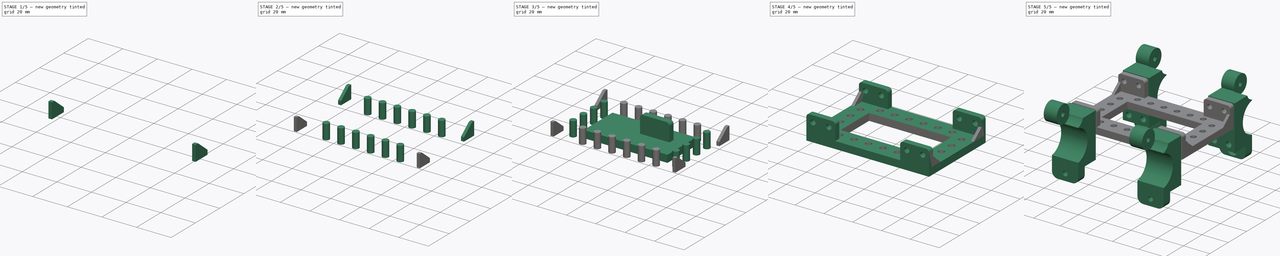
[diagram: build sequence overview — one tinted view per stage of 5, left to right]
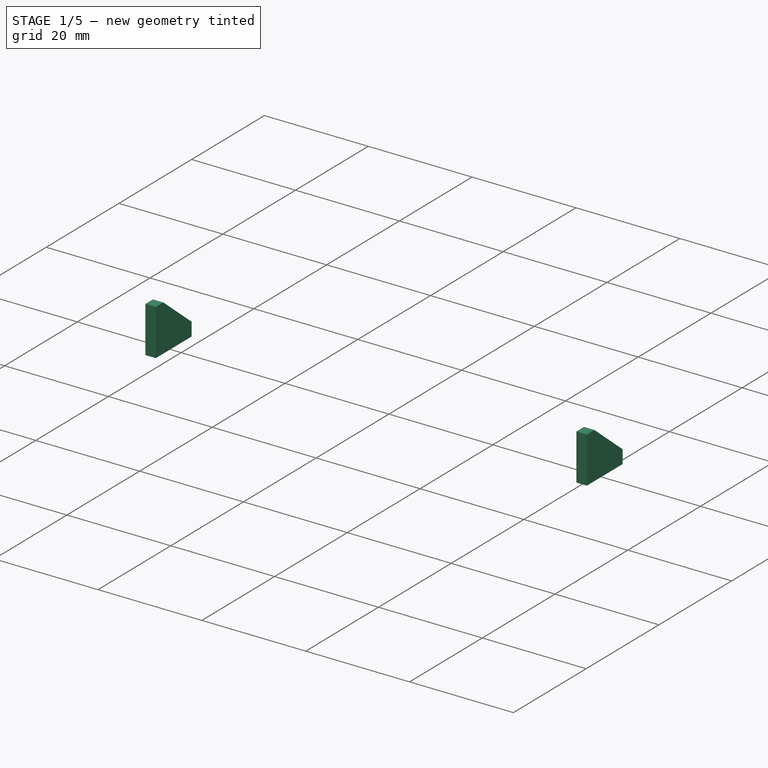
[diagram: stage 1 of 5 — iso view after this stage's code; geometry added in this stage tinted green]
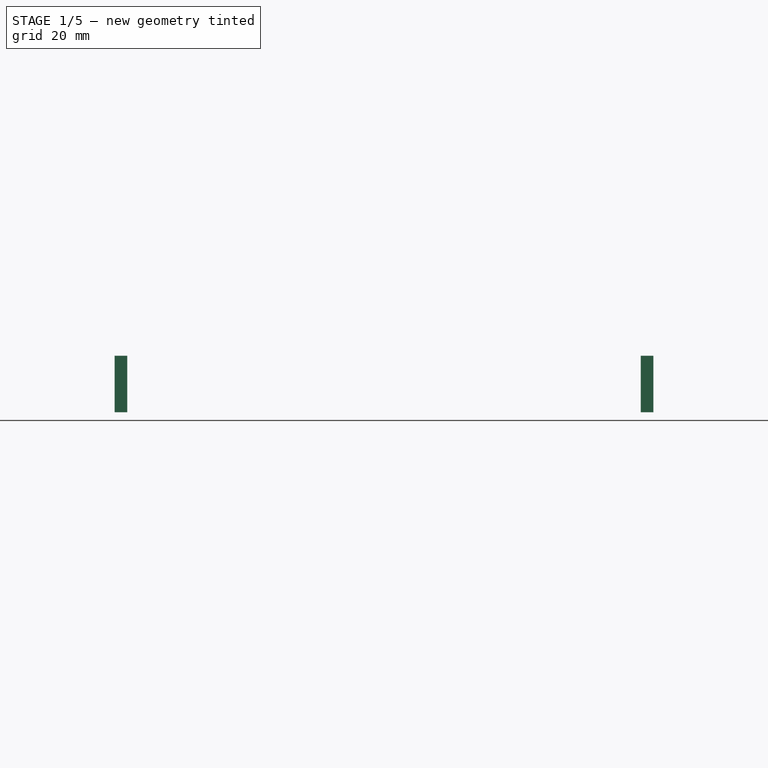
[diagram: stage 1 of 5 — front view after this stage's code; geometry added in this stage tinted green]
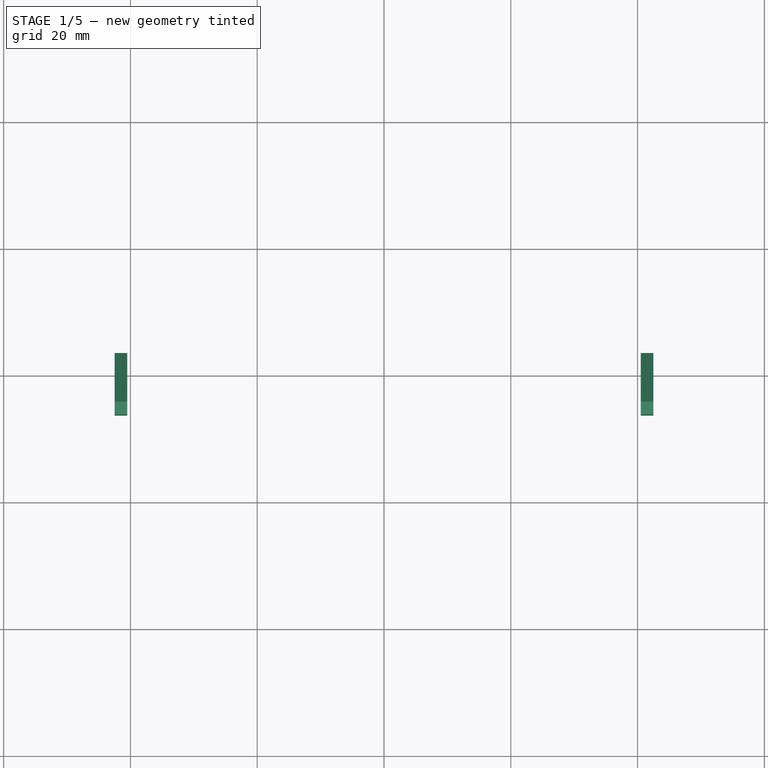
[diagram: stage 1 of 5 — top view after this stage's code; geometry added in this stage tinted green]
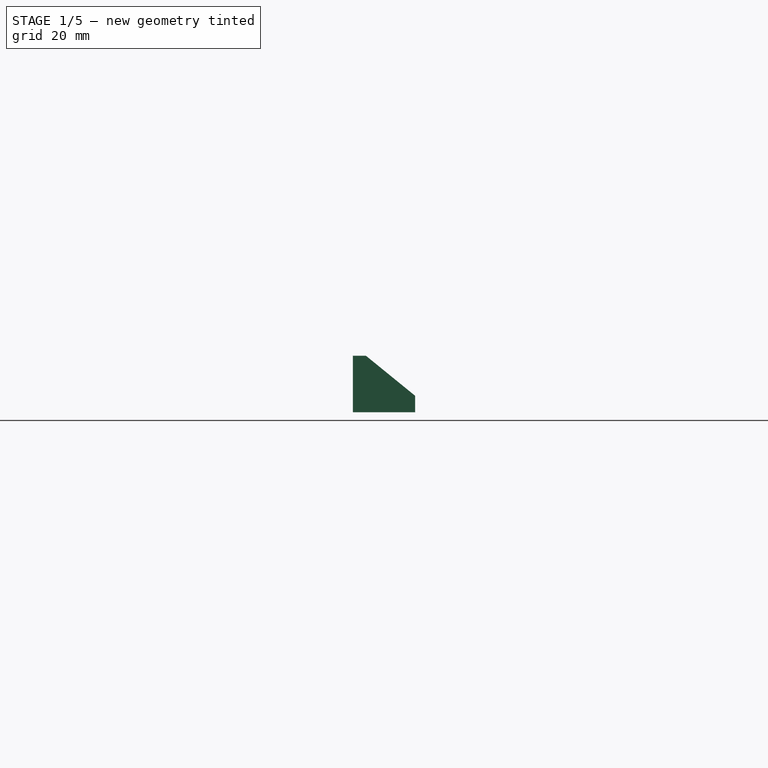
[diagram: stage 1 of 5 — right view after this stage's code; geometry added in this stage tinted green]
FCSTD DOCUMENT  (FreeCAD 0.19R)
Label: carriage
License: All rights reserved
LicenseURL: http://en.wikipedia.org/wiki/All_rights_reserved
objects: Part::FeaturePython×6, Part::Box×3, Part::Feature×2, Part::Mirroring×2, Part::Compound×2, Part::Cylinder×2, Part::Cut×2, Part::MultiFuse×2, PartDesign::Body×2, Spreadsheet::Sheet×1, Part::Fillet×1, Sketcher::SketchObject×1, PartDesign::Pad×1, App::Part×1, PartDesign::FeatureBase×1
note: 22 computed .brp shape members not serialized (recipe doc carries the construction recipe); baked Part::Feature solids carry a one-line shape summary decoded from their .brp

FEATURE [Part::Box] Box  label="outer cube"
  AttacherType = Attacher::AttachEngine3D
  Height = 5
  Length = 85
  Placement = pos=(-42.5,-28,0) rot=(0,0,1;0rad)
  Width = 56
  expr: .Placement.Base.y = -Width / 2
  expr: .Placement.Base.x = -Length / 2
  expr: Height = <<p>>.carriage_h
  expr: Width = <<p>>.carriage_w
  expr: Length = <<p>>.carriage_l
FEATURE [Part::Box] Box002  label="connector cube"
  AttacherType = Attacher::AttachEngine3D
  Height = 17
  Length = 20
  Width = 4
  expr: Length = <<p>>.attachment_size
  expr: Width = <<p>>.connection_wall
FEATURE [Sketcher::SketchObject] Sketch
  FullyConstrained = false
  MapMode = 5
  Placement = pos=(0,0,0) rot=(0.57735,0.57735,0.57735;2.0944rad)
  Support = -> [YZ_Plane001]
  sketch-geometry (5):
    g0: LineSegment StartX=-26.2618 StartY=11.2812 StartZ=0 EndX=-24.1909 EndY=11.2812 EndZ=0
    g1: LineSegment StartX=-24.1909 StartY=11.2812 StartZ=0 EndX=-16.4249 EndY=4.96486 EndZ=0
    g2: LineSegment StartX=-16.4249 StartY=4.96486 StartZ=0 EndX=-16.4249 EndY=2.3762 EndZ=0
    g3: LineSegment StartX=-16.4249 StartY=2.3762 StartZ=0 EndX=-26.2618 EndY=2.3762 EndZ=0
    g4: LineSegment StartX=-26.2618 StartY=2.3762 StartZ=0 EndX=-26.2618 EndY=11.2812 EndZ=0
  constraints (8):
    c: Coincident(g1,g0)
    c: Vertical(g2)
    c: Coincident(g3,g2)
    c: Coincident(g4,g3)
    c: Coincident(g4,g0)
    c: Horizontal(g0)
    c: Horizontal(g3)
    c: Vertical(g4)
FEATURE [PartDesign::Pad] Pad
  Direction = (1,1,1)
  Length = 2
  Length2 = 100
  Placement = pos=(0,0,0) rot=(0.57735,0.57735,0.57735;2.0944rad)
  Profile = -> Sketch
  Type = 0
FEATURE [PartDesign::Body] Body  label="triangle body"
  Group = -> [Sketch,Pad]
  Origin = -> Origin001
  Tip = -> Pad
FEATURE [Part::FeaturePython] Array005  label="triangle body array"  # Draft array (typed FeaturePython)
  Angle = 360
  ArrayType = 0
  Axis = (0,0,1)
  Base = -> Body
  Center = (0,0,0)
  Count = 2
  ExpandArray = false
  Fuse = false
  IntervalAxis = (0,0,0)
  IntervalX = (83,0,0)
  IntervalY = (0,52,0)
  IntervalZ = (0,0,100)
  NumberCircles = 3
  NumberPolar = 5
  NumberX = 2
  NumberY = 1
  NumberZ = 1
  Placement = pos=(-42.5,0,0) rot=(0,0,1;0rad)
  PlacementList = 2 placements: [(0,0,0),(83,0,0)]
  RadialDistance = 50
  ScaleList = (2) [(1,1,1),(1,1,1)]
  Symmetry = 1
  TangentialDistance = 25
  expr: .IntervalX.x = <<outer cube>>.Length - <<Pad>>.Length
  expr: .IntervalY.y = <<outer cube>>.Width - <<connector cube>>.Width
  expr: .Placement.Base.x = -<<outer cube>>.Length / 2
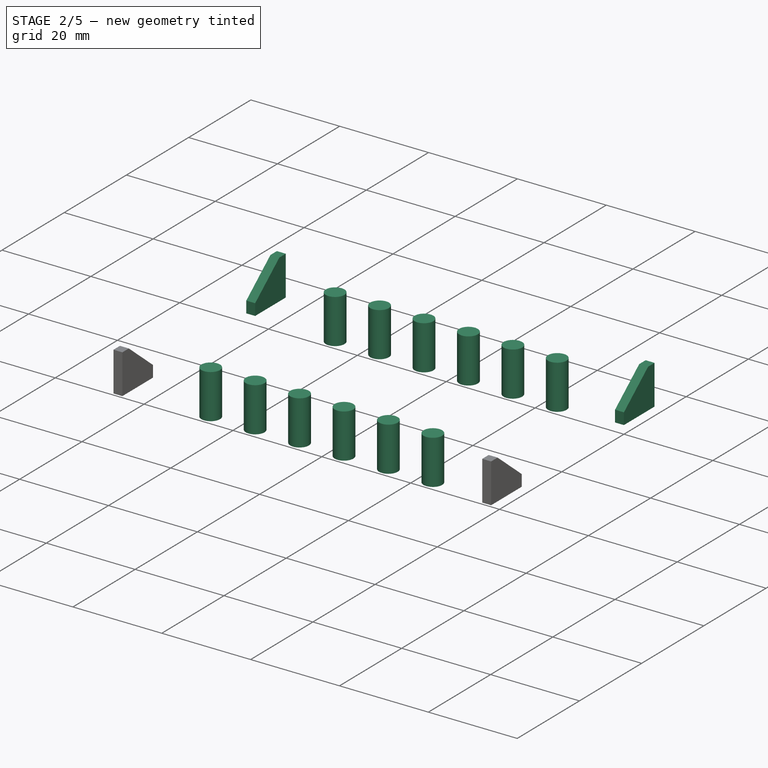
[diagram: stage 2 of 5 — iso view after this stage's code; geometry added in this stage tinted green]
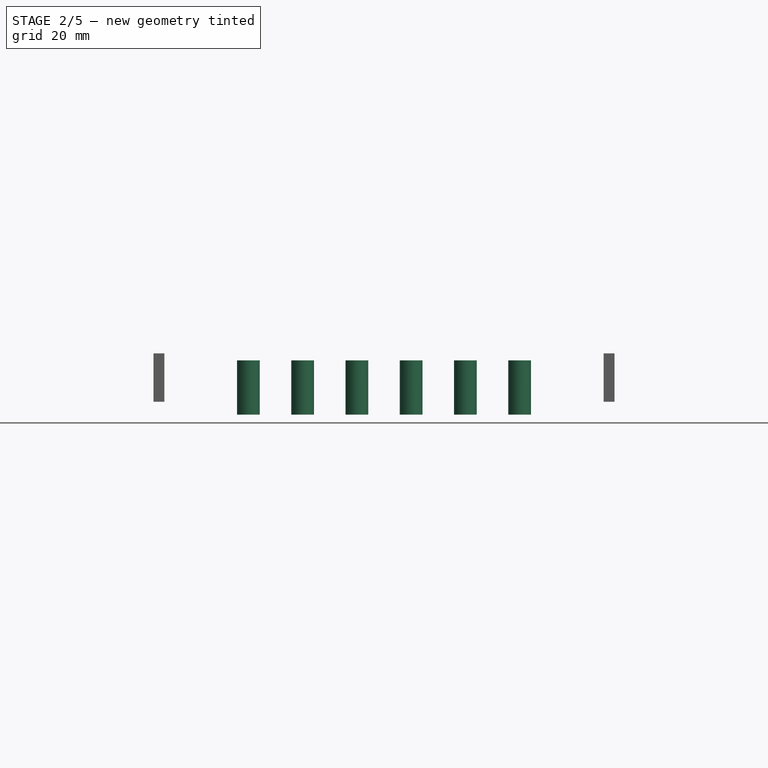
[diagram: stage 2 of 5 — front view after this stage's code; geometry added in this stage tinted green]
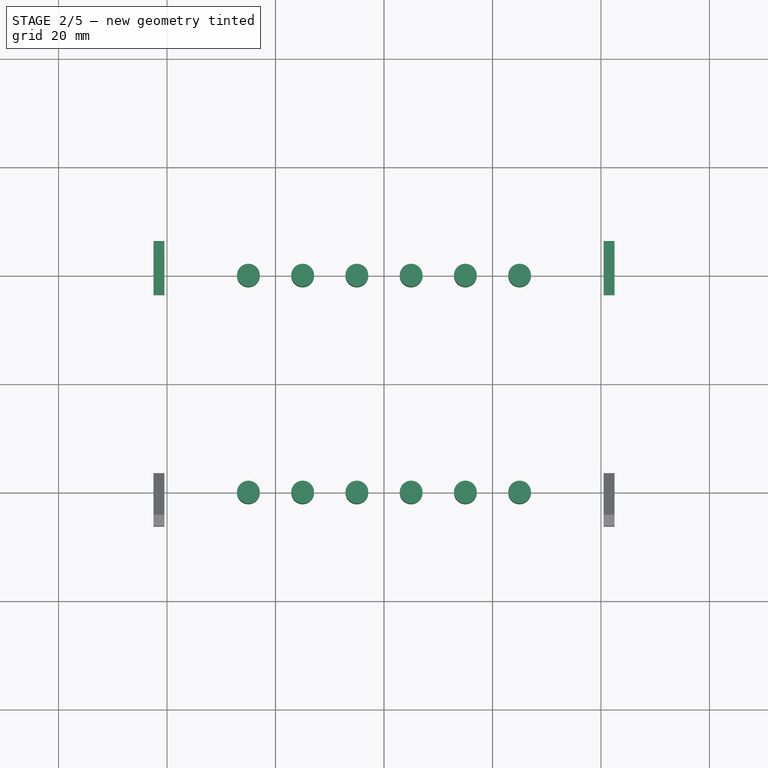
[diagram: stage 2 of 5 — top view after this stage's code; geometry added in this stage tinted green]
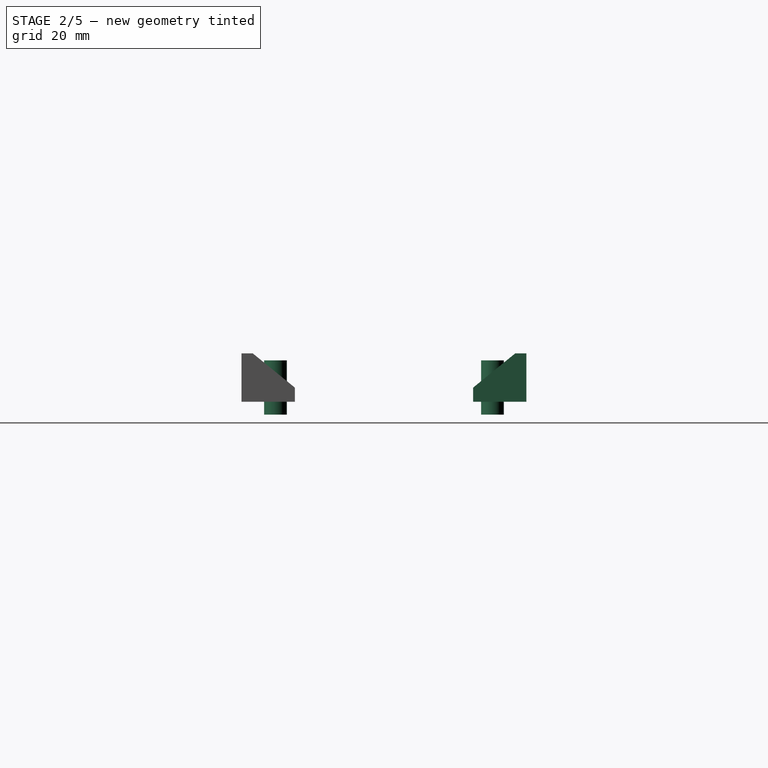
[diagram: stage 2 of 5 — right view after this stage's code; geometry added in this stage tinted green]
FEATURE [Part::Feature] Part002001  label="belt attach001"
  Placement = pos=(34,1e-15,5) rot=(-1,0,0;1.5708rad)
  shape: bbox 24 x 24 x 9 mm, 115 faces (baked)
FEATURE [Part::Cylinder] Cylinder  label="insert hole"
  Angle = 360
  AttacherType = Attacher::AttachEngine3D
  Height = 10
  Radius = 2.1
  expr: Radius = <<p>>.insert_r
FEATURE [Part::FeaturePython] Array004  label="insert hole array001"  # Draft array (typed FeaturePython)
  Angle = 360
  ArrayType = 0
  Axis = (0,0,1)
  Base = -> Cylinder
  Center = (0,0,0)
  Count = 12
  ExpandArray = false
  Fuse = false
  IntervalAxis = (0,0,0)
  IntervalX = (10,0,0)
  IntervalY = (0,40,0)
  IntervalZ = (0,0,100)
  NumberCircles = 3
  NumberPolar = 5
  NumberX = 6
  NumberY = 2
  NumberZ = 1
  Placement = pos=(-25,-20,0) rot=(0,0,1;0rad)
  PlacementList = 12 placements: [(0,0,0),(0,40,0),(10,0,0),(10,40,0),(20,0,0),(20,40,0),(30,0,0),(30,40,0),(40,0,0),(40,40,0),(50,0,0),(50,40,0)]
  RadialDistance = 50
  ScaleList = (12) [(1,1,1),(1,1,1),(1,1,1),(1,1,1),(1,1,1),(1,1,1),(1,1,1),(1,1,1),(1,1,1),(1,1,1),(1,1,1),(1,1,1)]
  Symmetry = 1
  TangentialDistance = 25
  expr: .Placement.Base.x = -(.IntervalX.x * (NumberX - 1)) / 2
  expr: .Placement.Base.y = -(.IntervalY.y * (NumberY - 1)) / 2
FEATURE [Part::Mirroring] Part__Mirroring001  label="triangle body array (Mirror #2)"
  Base = (0,0,0)
  Normal = (0,1,0)
  Source = -> Array005
FEATURE [Part::Compound] Compound001  label="triangle compound"
  Links = -> [Array005,Part__Mirroring001]
FEATURE [App::Part] Part  label="triangle part"
  Group = -> [Compound001]
  Origin = -> Origin
FEATURE [PartDesign::FeatureBase] Clone
  BaseFeature = -> Compound001
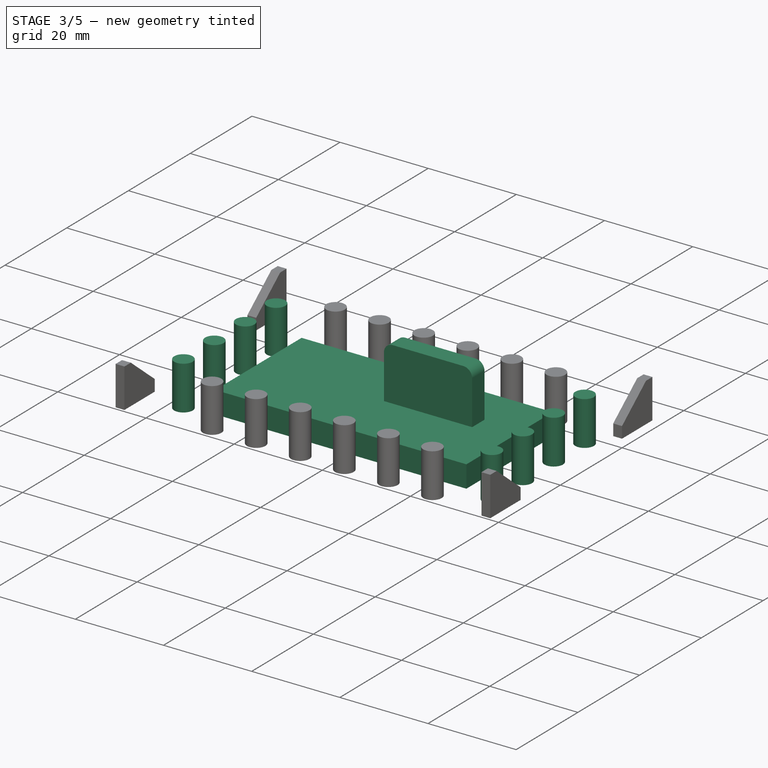
[diagram: stage 3 of 5 — iso view after this stage's code; geometry added in this stage tinted green]
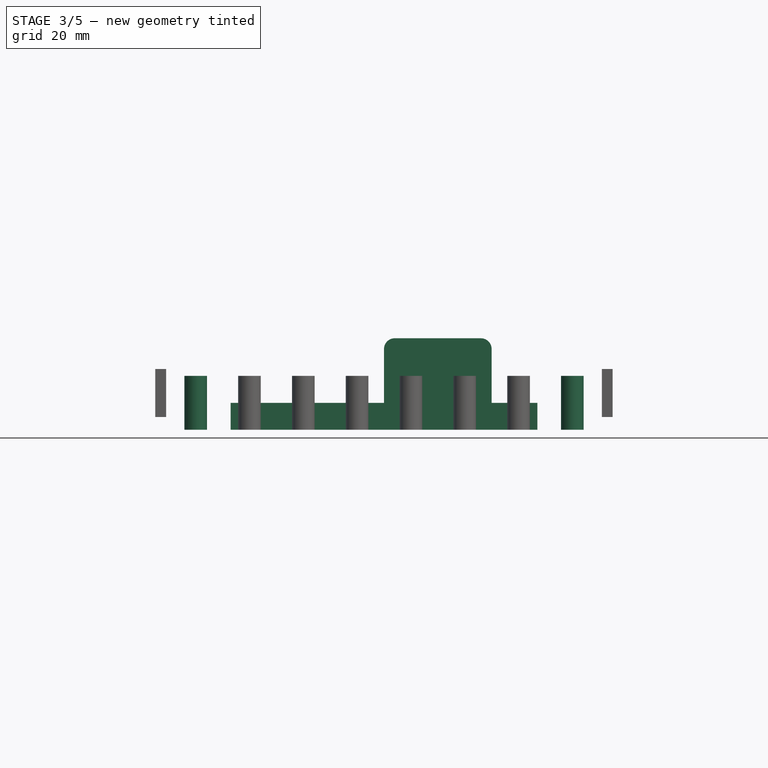
[diagram: stage 3 of 5 — front view after this stage's code; geometry added in this stage tinted green]
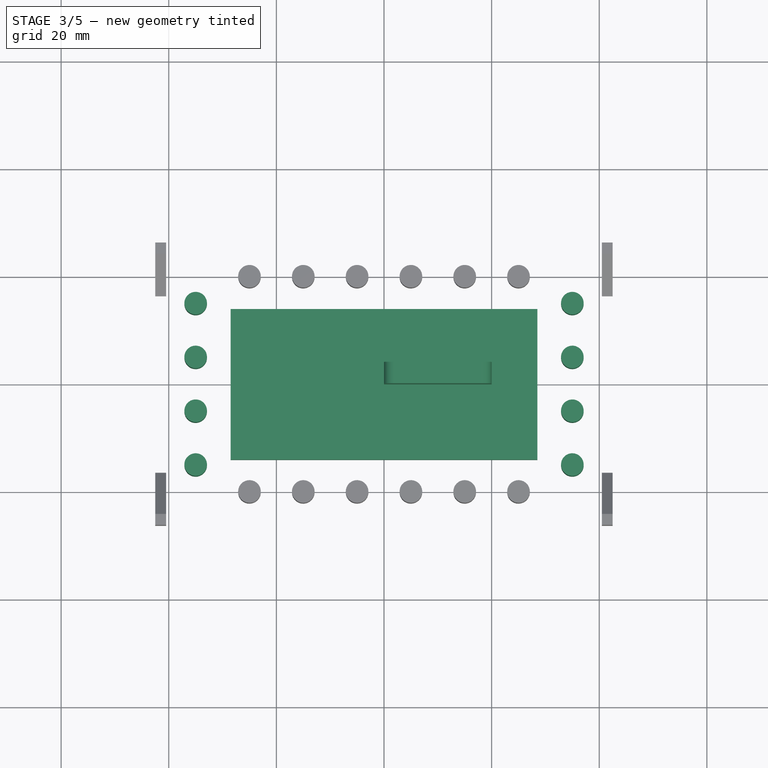
[diagram: stage 3 of 5 — top view after this stage's code; geometry added in this stage tinted green]
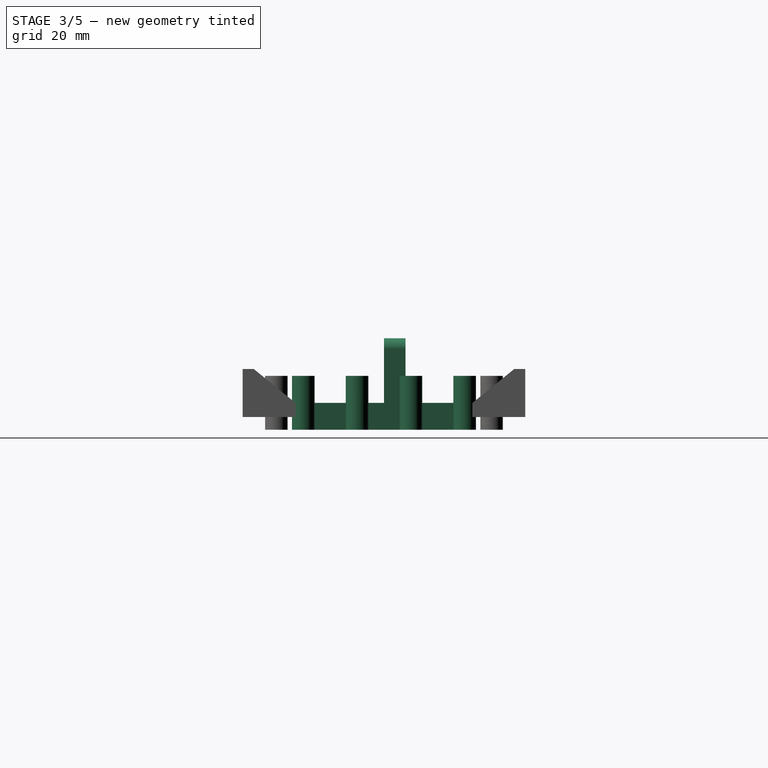
[diagram: stage 3 of 5 — right view after this stage's code; geometry added in this stage tinted green]
FEATURE [Spreadsheet::Sheet] Spreadsheet  label="p"
  cells = A1=carriage_l; B1(carriage_l)==85mm; A2=carriage_w; B2(carriage_w)==56mm; A3=carriage_h; B3(carriage_h)==5mm; A4=carriage_pad; B4(carriage_pad)==14mm; A5=attachment_size; B5(attachment_size)==20mm; A6=connection_wall; B6(connection_wall)==4mm; A7=bolt_hole_r; B7(bolt_hole_r)==1.8mm; A8=insert_r; B8(insert_r)==2.1mm
FEATURE [Part::Box] Box001  label="inner cube"
  AttacherType = Attacher::AttachEngine3D
  Height = 5
  Length = 57
  Placement = pos=(-28.5,-14,0) rot=(0,0,1;0rad)
  Width = 28
  expr: Length = <<p>>.carriage_l - 2 * <<p>>.carriage_pad
  expr: Width = <<p>>.carriage_w - 2 * <<p>>.carriage_pad
  expr: Height = <<p>>.carriage_h
  expr: .Placement.Base.x = -Length / 2
  expr: .Placement.Base.y = -Width / 2
FEATURE [Part::Fillet] Fillet  label="connector cube fillet"
  Base = -> Box002
  Edges = 2 edges r=2: [Edge2,Edge6]
FEATURE [Part::FeaturePython] Array003  label="insert hole array"  # Draft array (typed FeaturePython)
  Angle = 360
  ArrayType = 0
  Axis = (0,0,1)
  Base = -> Cylinder
  Center = (0,0,0)
  Count = 8
  ExpandArray = false
  Fuse = false
  IntervalAxis = (0,0,0)
  IntervalX = (70,0,0)
  IntervalY = (0,10,0)
  IntervalZ = (0,0,100)
  NumberCircles = 3
  NumberPolar = 5
  NumberX = 2
  NumberY = 4
  NumberZ = 1
  Placement = pos=(-35,-15,0) rot=(0,0,1;0rad)
  PlacementList = 8 placements: [(0,0,0),(0,10,0),(0,20,0),(0,30,0),(70,0,0),(70,10,0),(70,20,0),(70,30,0)]
  RadialDistance = 50
  ScaleList = (8) [(1,1,1),(1,1,1),(1,1,1),(1,1,1),(1,1,1),(1,1,1),(1,1,1),(1,1,1)]
  Symmetry = 1
  TangentialDistance = 25
  expr: .Placement.Base.y = -(.IntervalY.y * (NumberY - 1)) / 2
  expr: .Placement.Base.x = -(.IntervalX.x * (NumberX - 1)) / 2
FEATURE [Part::MultiFuse] Fusion001  label="carriage extract fusion"
  Shapes = -> [Box001,Array003,Array004]
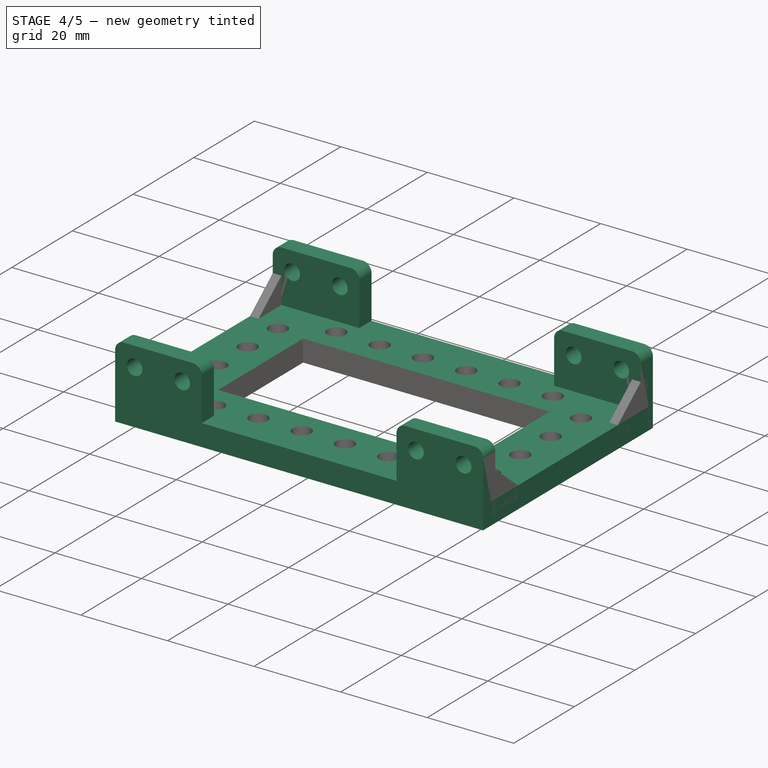
[diagram: stage 4 of 5 — iso view after this stage's code; geometry added in this stage tinted green]
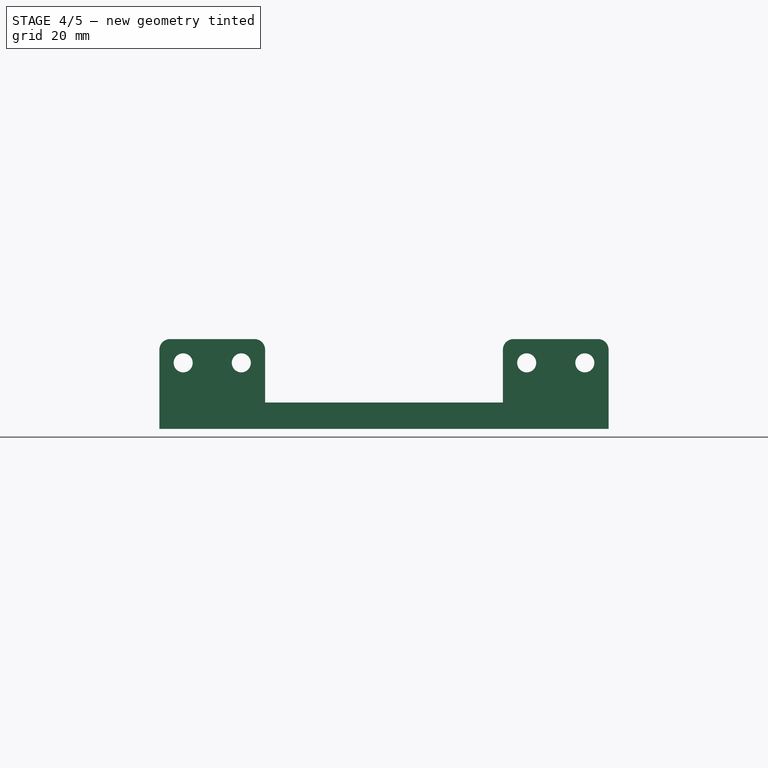
[diagram: stage 4 of 5 — front view after this stage's code; geometry added in this stage tinted green]
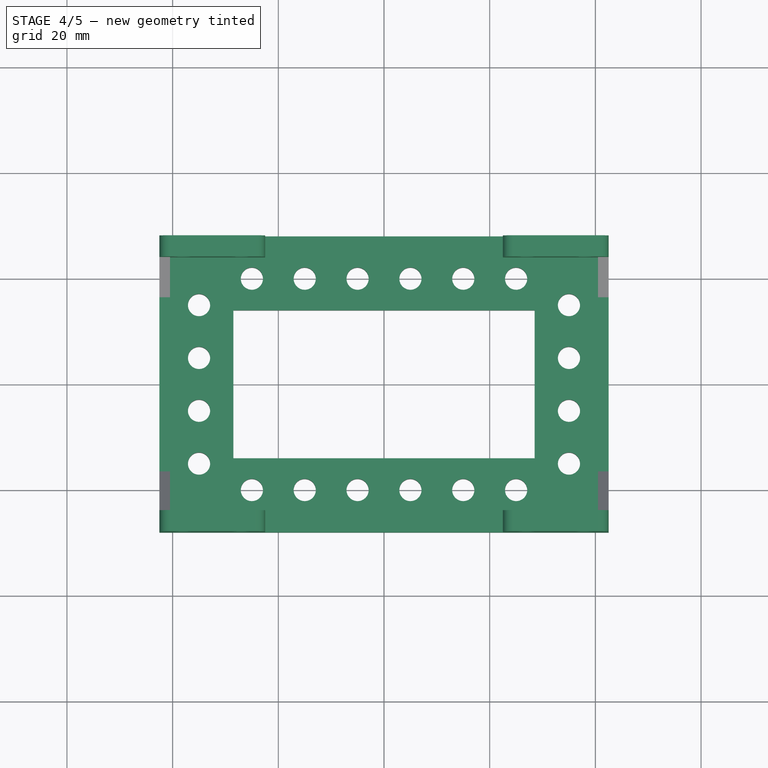
[diagram: stage 4 of 5 — top view after this stage's code; geometry added in this stage tinted green]
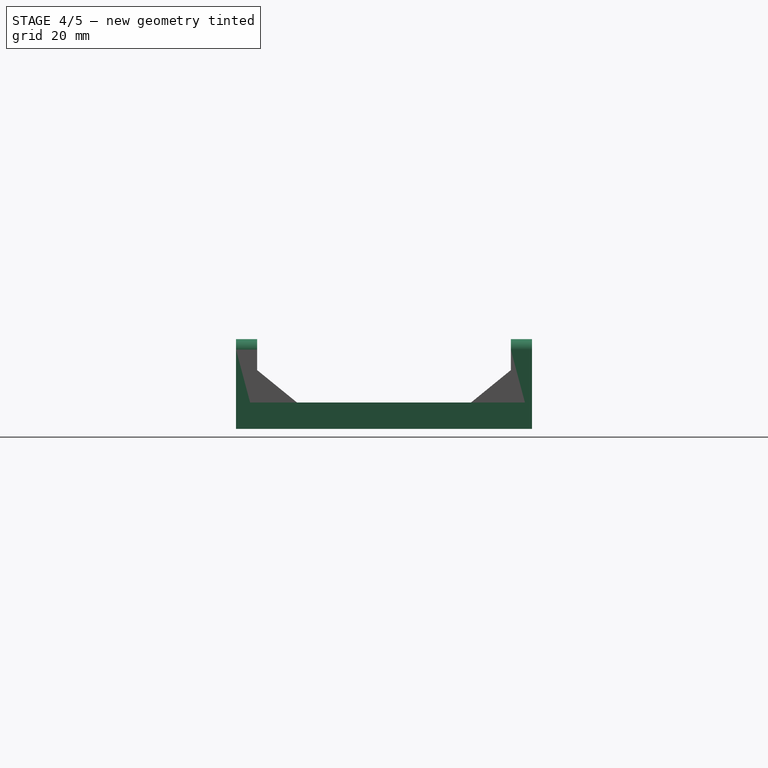
[diagram: stage 4 of 5 — right view after this stage's code; geometry added in this stage tinted green]
FEATURE [Part::Cylinder] Cylinder038  label="bolt hole"
  Angle = 360
  AttacherType = Attacher::AttachEngine3D
  Height = 100
  Placement = pos=(0,0,-50) rot=(0,0,1;0rad)
  Radius = 1.8
  expr: .Placement.Base.z = -Height / 2
  expr: Radius = <<p>>.bolt_hole_r
FEATURE [Part::FeaturePython] Array002  label="connector bolt hole array"  # Draft array (typed FeaturePython)
  Angle = 360
  ArrayType = 0
  Axis = (0,0,1)
  Base = -> Cylinder038
  Center = (0,0,0)
  Count = 4
  ExpandArray = false
  Fuse = false
  IntervalAxis = (0,0,0)
  IntervalX = (11,0,0)
  IntervalY = (0,25,0)
  IntervalZ = (0,0,100)
  NumberCircles = 3
  NumberPolar = 5
  NumberX = 2
  NumberY = 2
  NumberZ = 1
  Placement = pos=(4.5,0,-12.5) rot=(1,0,0;1.5708rad)
  PlacementList = 4 placements: [(0,0,-50),(0,25,-50),(11,0,-50),(11,25,-50)]
  RadialDistance = 50
  ScaleList = (4) [(1,1,1),(1,1,1),(1,1,1),(1,1,1)]
  Symmetry = 1
  TangentialDistance = 25
  expr: .Placement.Base.x = (<<p>>.attachment_size - .IntervalX.x) / 2
  expr: .Placement.Base.z = -.IntervalY.y / 2
FEATURE [Part::Cut] Cut023015009002  label="connector cube cut"
  Base = -> Fillet
  Tool = -> Array002
FEATURE [Part::FeaturePython] Array001  label="connector cube array"  # Draft array (typed FeaturePython)
  Angle = 360
  ArrayType = 0
  Axis = (0,0,1)
  Base = -> Cut023015009002
  Center = (0,0,0)
  Count = 4
  ExpandArray = false
  Fuse = false
  IntervalAxis = (0,0,0)
  IntervalX = (65,0,0)
  IntervalY = (0,52,0)
  IntervalZ = (0,0,100)
  NumberCircles = 3
  NumberPolar = 5
  NumberX = 2
  NumberY = 2
  NumberZ = 1
  Placement = pos=(-42.5,-28,0) rot=(0,0,1;0rad)
  PlacementList = 4 placements: [(0,0,0),(0,52,0),(65,0,0),(65,52,0)]
  RadialDistance = 50
  ScaleList = (4) [(1,1,1),(1,1,1),(1,1,1),(1,1,1)]
  Symmetry = 1
  TangentialDistance = 25
  expr: .Placement.Base.y = -<<outer cube>>.Width / 2
  expr: .Placement.Base.x = -<<outer cube>>.Length / 2
  expr: .IntervalY.y = <<outer cube>>.Width - <<connector cube>>.Width
  expr: .IntervalX.x = <<outer cube>>.Length - <<connector cube>>.Length
FEATURE [Part::Cut] Cut  label="carriage cube cut"
  Base = -> Box
  Tool = -> Fusion001
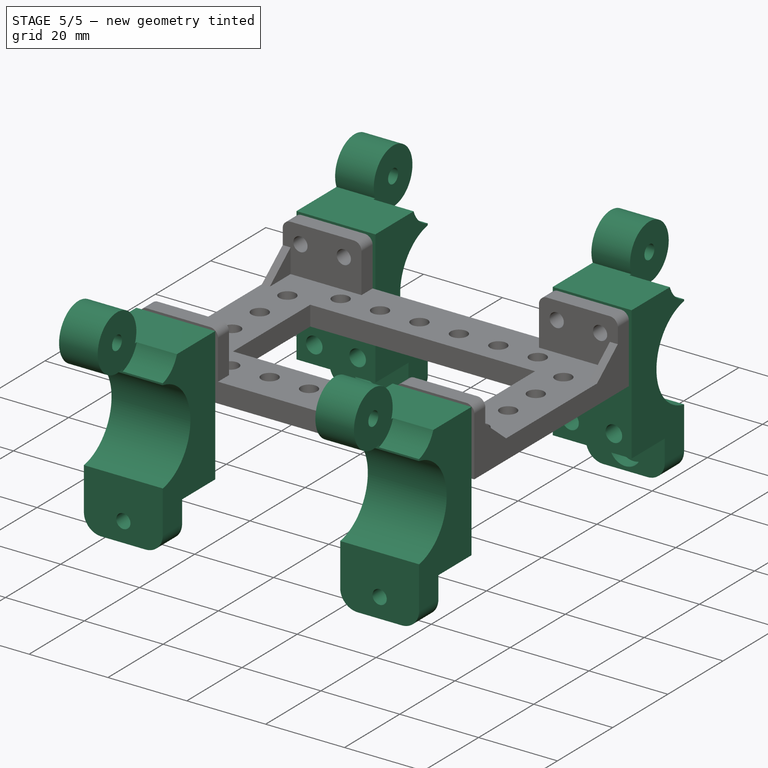
[diagram: stage 5 of 5 — iso view after this stage's code; geometry added in this stage tinted green]
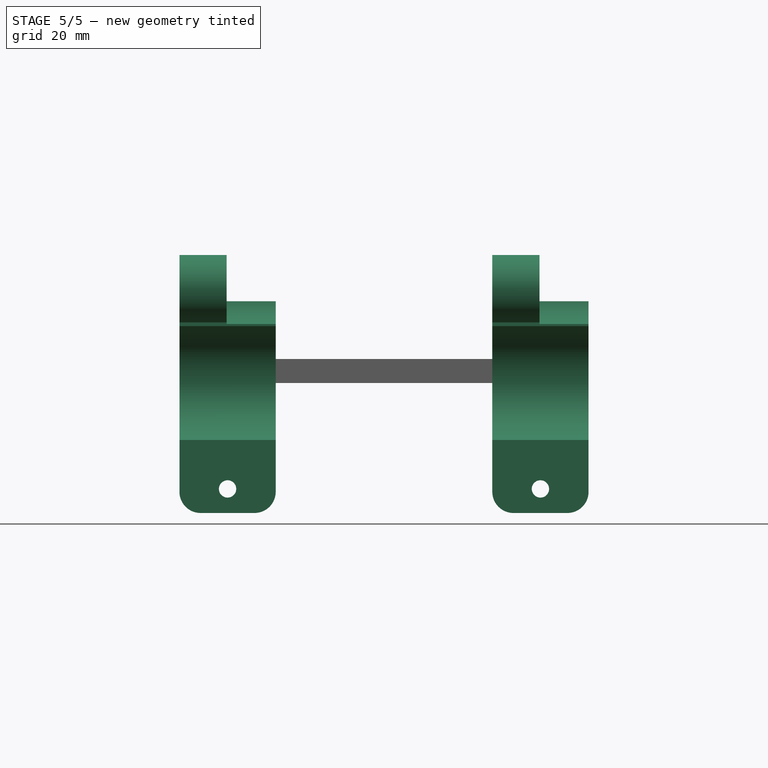
[diagram: stage 5 of 5 — front view after this stage's code; geometry added in this stage tinted green]
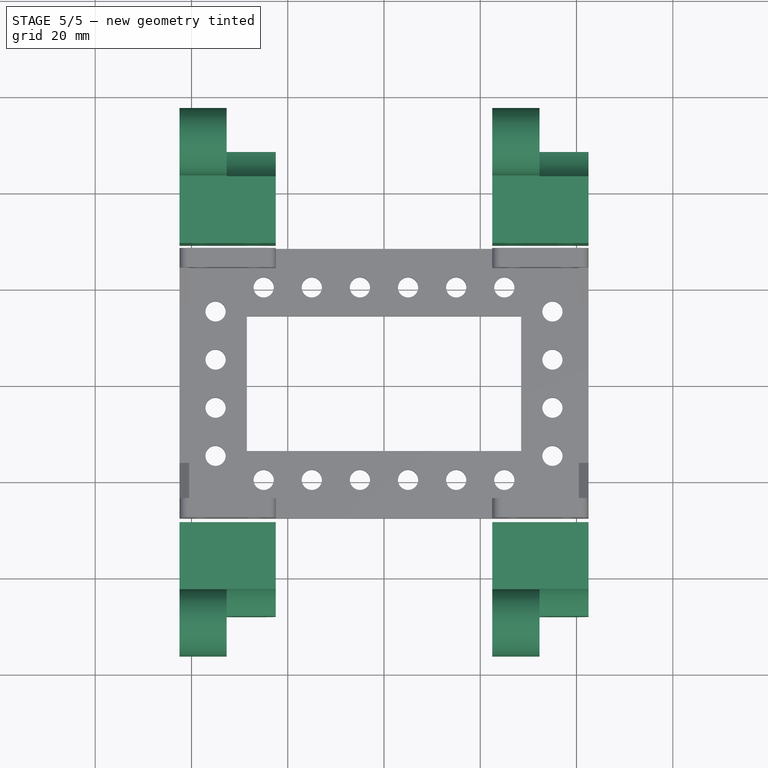
[diagram: stage 5 of 5 — top view after this stage's code; geometry added in this stage tinted green]
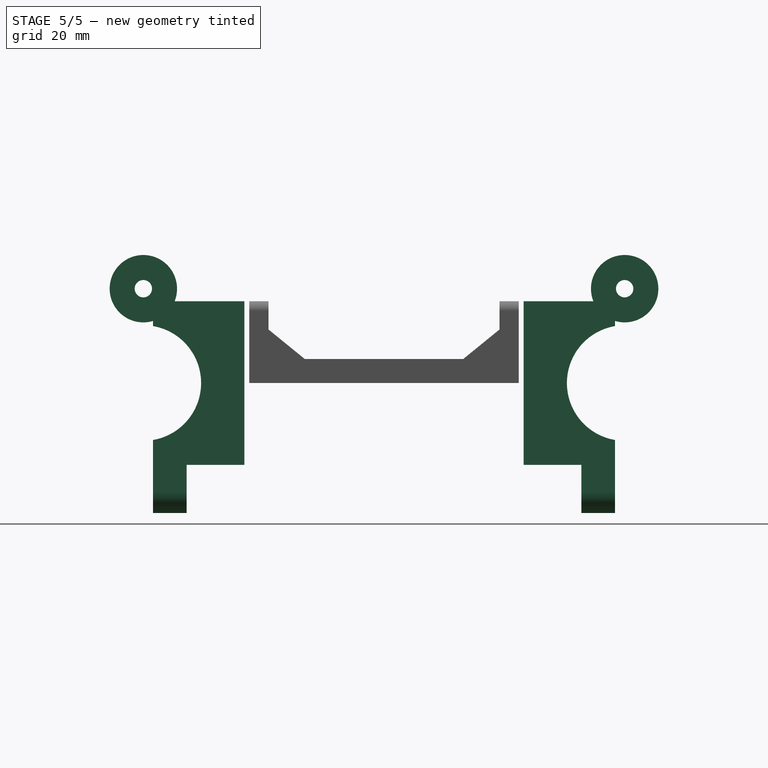
[diagram: stage 5 of 5 — right view after this stage's code; geometry added in this stage tinted green]
FEATURE [Part::Feature] Cut023015009001  label="24mm pipe attachment bolt"
  shape: bbox 53.6 x 28 x 20 mm, 42 faces (baked)
FEATURE [Part::FeaturePython] Array  label="24mm pipe attachment bolt array"  # Draft array (typed FeaturePython)
  Angle = 360
  ArrayType = 0
  Axis = (0,0,1)
  Base = -> Cut023015009001
  Center = (0,0,0)
  Count = 2
  ExpandArray = false
  Fuse = false
  IntervalAxis = (0,0,0)
  IntervalX = (100,0,0)
  IntervalY = (0,100,0)
  IntervalZ = (0,0,65)
  NumberCircles = 3
  NumberPolar = 5
  NumberX = 1
  NumberY = 1
  NumberZ = 2
  PlacementList = 2 placements: [(0,0,0),(0,0,65)]
  RadialDistance = 50
  ScaleList = (2) [(1,1,1),(1,1,1)]
  Symmetry = 1
  TangentialDistance = 25
FEATURE [Part::Mirroring] Part__Mirroring  label="24mm pipe attachment bolt array (Mirror #1)"
  Base = (0,50,0)
  Normal = (0,1,0)
  Source = -> Array
FEATURE [Part::Compound] Compound  label="24mm pipe attachments compound"
  Links = -> [Part__Mirroring,Array]
  Placement = pos=(42.5,-50,0) rot=(0,-1,0;1.5708rad)
FEATURE [PartDesign::Body] Body001  label="triangle compound clone"
  Group = -> [Clone]
  Origin = -> Origin002
  Tip = -> Clone
FEATURE [Part::MultiFuse] Fusion  label="carriage fusion"
  Shapes = -> [Array001,Cut,Body001]
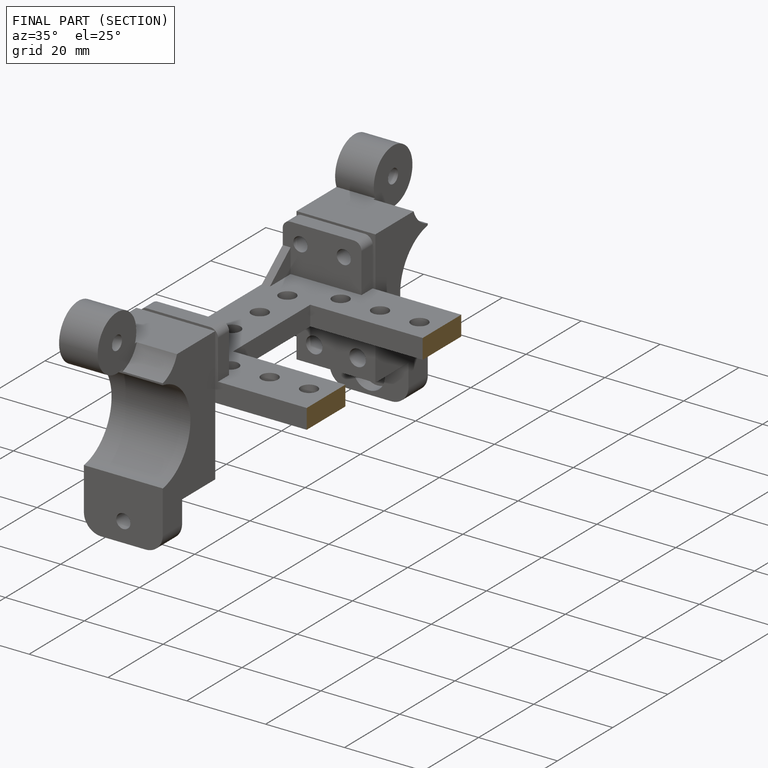
[diagram: finished part — half-section view (interior)]
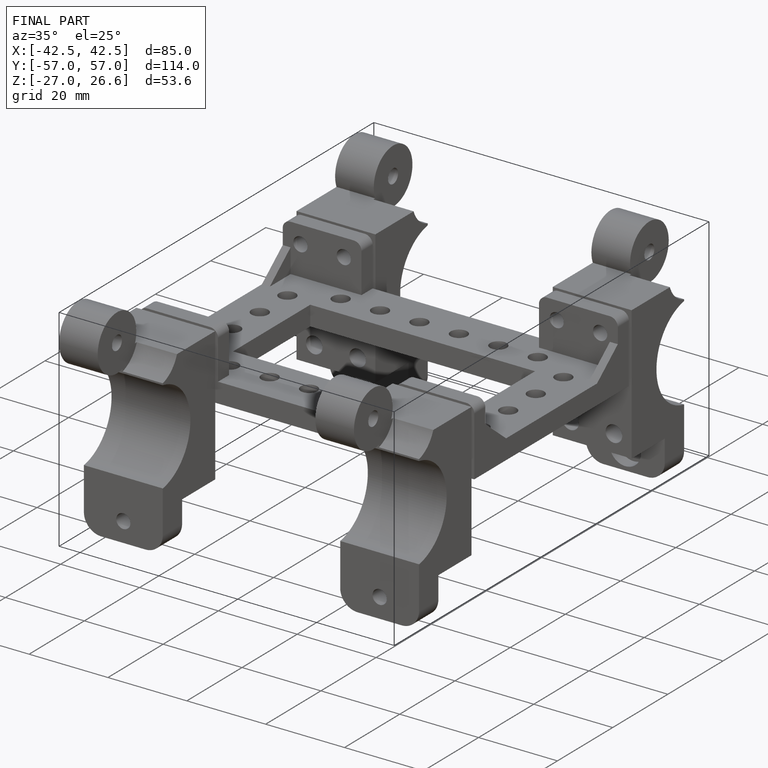
[diagram: finished part — iso view with bounding-box wireframe]
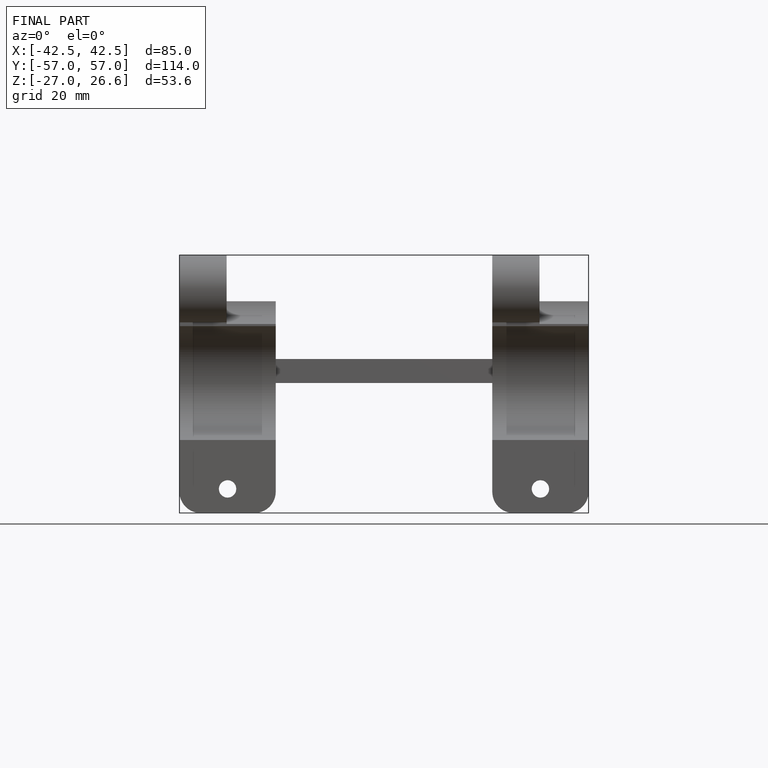
[diagram: finished part — front view with bounding-box wireframe]
